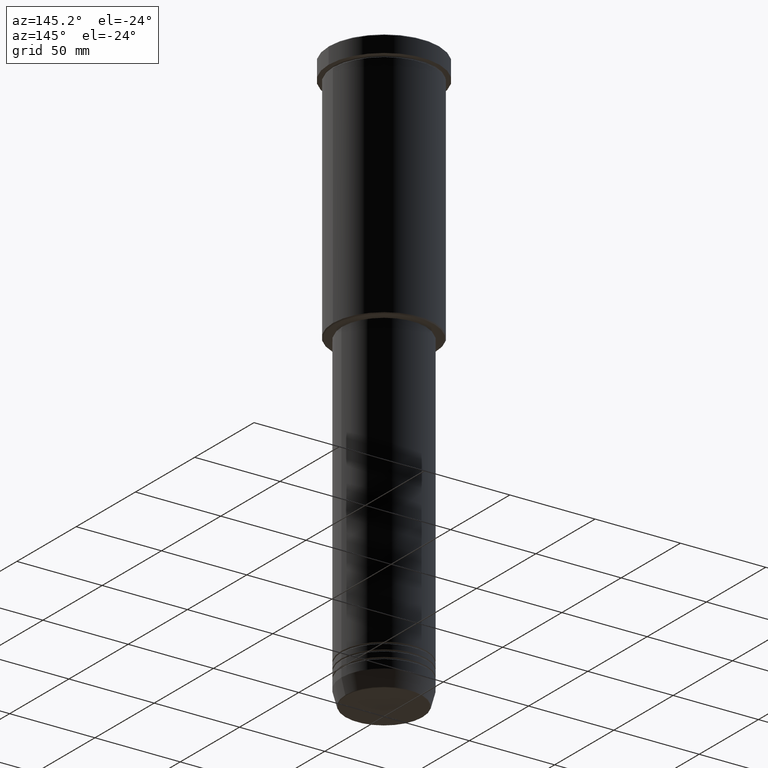
[diagram: clean part render]
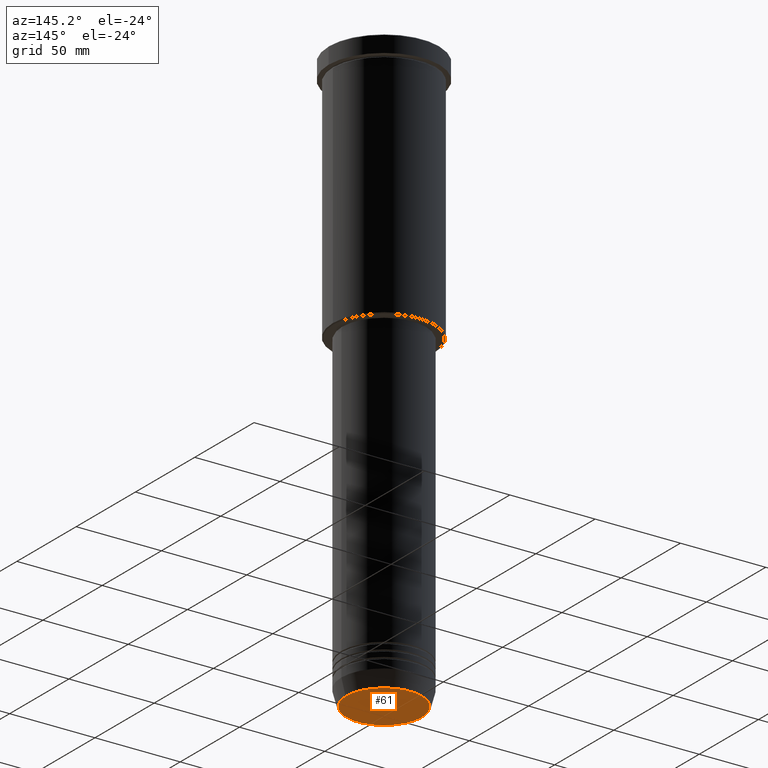
[diagram: same view with one face highlighted and labeled with its STEP entity id]
A machine part, auxiliary view. The second image highlights one B-rep face of the part: STEP entity #61.
In plain terms, the highlighted planar face has unit normal (0, -0, 1).
Its self-contained STEP definition (entity closure, byte-faithful):
#3 = CARTESIAN_POINT ( 'NONE',  ( 22.20479377413040467, 0.000000000000000000, -340.0000000000000000 ) ) ;
#61 = ADVANCED_FACE ( 'NONE', ( #802 ), #423, .F. ) ;
#67 = AXIS2_PLACEMENT_3D ( 'NONE', #626, #709, #362 ) ;
#247 = EDGE_CURVE ( 'NONE', #999, #506, #571, .T. ) ;
#362 = DIRECTION ( 'NONE',  ( 1.000000000000000000, 0.000000000000000000, 0.000000000000000000 ) ) ;
#423 = PLANE ( 'NONE',  #689 ) ;
#435 = EDGE_CURVE ( 'NONE', #506, #999, #641, .T. ) ;
#441 = CARTESIAN_POINT ( 'NONE',  ( 0.000000000000000000, 0.000000000000000000, -340.0000000000000000 ) ) ;
#504 = DIRECTION ( 'NONE',  ( 1.000000000000000000, 0.000000000000000000, 0.000000000000000000 ) ) ;
#506 = VERTEX_POINT ( 'NONE', #3 ) ;
#513 = ORIENTED_EDGE ( 'NONE', *, *, #435, .T. ) ;
#571 = CIRCLE ( 'NONE', #67, 22.20479377413040467 ) ;
#626 = CARTESIAN_POINT ( 'NONE',  ( 0.000000000000000000, 0.000000000000000000, -340.0000000000000000 ) ) ;
#641 = CIRCLE ( 'NONE', #973, 22.20479377413040467 ) ;
#689 = AXIS2_PLACEMENT_3D ( 'NONE', #441, #1157, #1069 ) ;
#693 = ORIENTED_EDGE ( 'NONE', *, *, #247, .T. ) ;
#709 = DIRECTION ( 'NONE',  ( 0.000000000000000000, 0.000000000000000000, -1.000000000000000000 ) ) ;
#802 = FACE_OUTER_BOUND ( 'NONE', #834, .T. ) ;
#834 = EDGE_LOOP ( 'NONE', ( #513, #693 ) ) ;
#953 = CARTESIAN_POINT ( 'NONE',  ( 0.000000000000000000, 0.000000000000000000, -340.0000000000000000 ) ) ;
#973 = AXIS2_PLACEMENT_3D ( 'NONE', #953, #1148, #504 ) ;
#999 = VERTEX_POINT ( 'NONE', #1111 ) ;
#1069 = DIRECTION ( 'NONE',  ( 1.000000000000000000, 0.000000000000000000, 0.000000000000000000 ) ) ;
#1111 = CARTESIAN_POINT ( 'NONE',  ( -22.20479377413040467, 2.748875911406054788E-15, -340.0000000000000000 ) ) ;
#1148 = DIRECTION ( 'NONE',  ( 0.000000000000000000, 0.000000000000000000, -1.000000000000000000 ) ) ;
#1157 = DIRECTION ( 'NONE',  ( 0.000000000000000000, -0.000000000000000000, 1.000000000000000000 ) ) ;